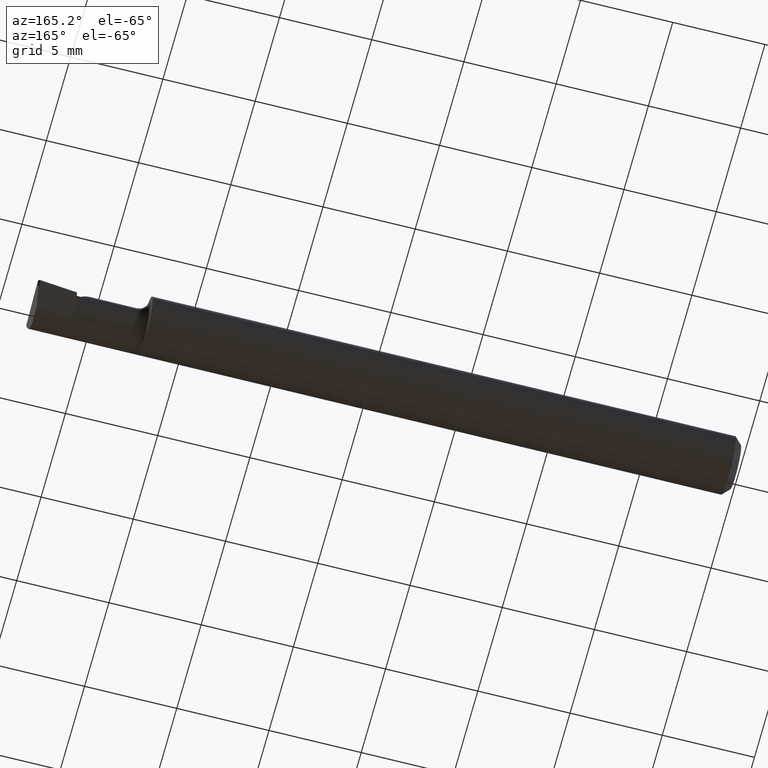
[diagram: clean part render]
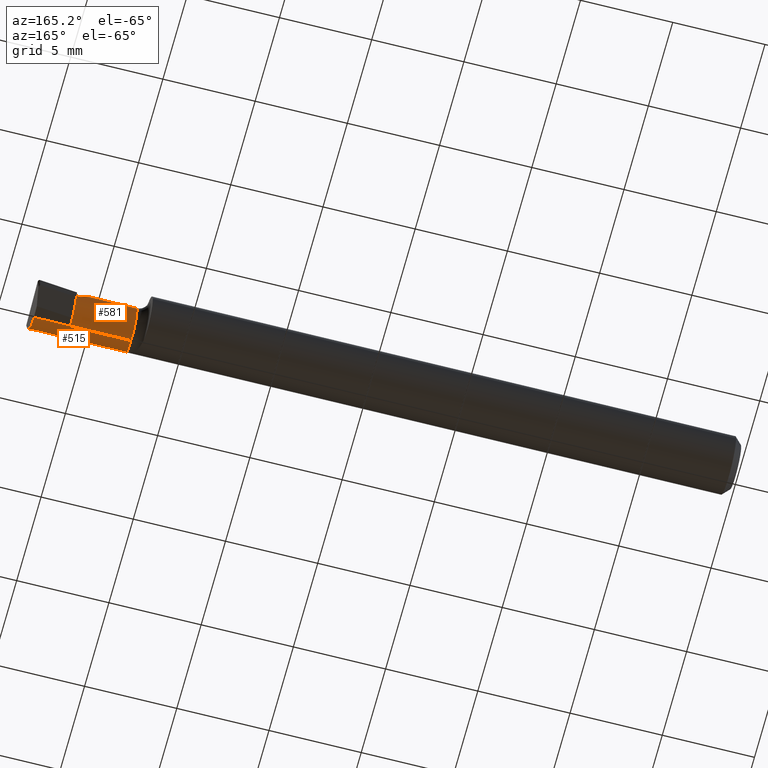
[diagram: same view with one multi-face feature highlighted, each face labeled with its STEP entity id]
A machine part, auxiliary view. The highlighted faces form ONE feature: a constant-radius fillet chain: 2 tangent blend faces with common blend radius 1.2205 mm. The faces share edges in the B-rep.
Their STEP definitions:
[1] entity #581 (Cylinder):
#10 = DIRECTION ( 'NONE',  ( -1.000000000000000000, -0.0000000000000000000, -0.0000000000000000000 ) ) ;
#23 = ORIENTED_EDGE ( 'NONE', *, *, #310, .T. ) ;
#40 = CARTESIAN_POINT ( 'NONE',  ( 1.285000000000000142, -0.01839999999999999969, 0.0000000000000000000 ) ) ;
#43 = EDGE_CURVE ( 'NONE', #458, #680, #747, .T. ) ;
#61 = CARTESIAN_POINT ( 'NONE',  ( 1.285000000000000142, -0.01839999999999999275, -0.04804999999999998161 ) ) ;
#87 = LINE ( 'NONE', #249, #661 ) ;
#105 = CARTESIAN_POINT ( 'NONE',  ( 2.249639673992775738E-32, 0.02964999999999998193, 1.836970198721025250E-16 ) ) ;
#108 = AXIS2_PLACEMENT_3D ( 'NONE', #377, #675, #667 ) ;
#111 = VERTEX_POINT ( 'NONE', #768 ) ;
#117 = CARTESIAN_POINT ( 'NONE',  ( 1.405000000000000249, 0.02964999999999991601, 1.163414459189982046E-17 ) ) ;
#129 = CARTESIAN_POINT ( 'NONE',  ( 0.0000000000000000000, -0.01839999999999999969, 0.0000000000000000000 ) ) ;
#141 = CARTESIAN_POINT ( 'NONE',  ( 0.0000000000000000000, -0.01839999999999999969, 0.04804999999999998855 ) ) ;
#155 = VERTEX_POINT ( 'NONE', #775 ) ;
#159 = VERTEX_POINT ( 'NONE', #267 ) ;
#165 = ORIENTED_EDGE ( 'NONE', *, *, #611, .T. ) ;
#168 = AXIS2_PLACEMENT_3D ( 'NONE', #253, #287, #349 ) ;
#178 = ORIENTED_EDGE ( 'NONE', *, *, #473, .T. ) ;
#180 = CARTESIAN_POINT ( 'NONE',  ( 1.376852961672026865, 0.02964999999999999233, 0.02814703832797277663 ) ) ;
#206 = DIRECTION ( 'NONE',  ( 0.0000000000000000000, 0.0000000000000000000, 1.000000000000000000 ) ) ;
#221 = CARTESIAN_POINT ( 'NONE',  ( 1.415000000000000036, -0.01839999999999999969, 0.0000000000000000000 ) ) ;
#222 = CARTESIAN_POINT ( 'NONE',  ( 1.356949999999999656, 0.009747038327972780414, 0.04804999999999998855 ) ) ;
#239 = LINE ( 'NONE', #105, #456 ) ;
#241 = VECTOR ( 'NONE', #319, 39.37007874015748143 ) ;
#245 = VERTEX_POINT ( 'NONE', #260 ) ;
#249 = CARTESIAN_POINT ( 'NONE',  ( 0.0000000000000000000, -0.01839999999999999275, -0.04804999999999998855 ) ) ;
#253 = CARTESIAN_POINT ( 'NONE',  ( 1.415000000000000036, -0.01839999999999999969, 0.0000000000000000000 ) ) ;
#260 = CARTESIAN_POINT ( 'NONE',  ( 1.405000000000000249, 0.02964999999999991601, 1.163414459189982046E-17 ) ) ;
#267 = CARTESIAN_POINT ( 'NONE',  ( 1.415000000000000036, 0.007456147106387282439, -0.04050015008383128778 ) ) ;
#269 = EDGE_CURVE ( 'NONE', #245, #527, #239, .T. ) ;
#287 = DIRECTION ( 'NONE',  ( -1.000000000000000000, -0.0000000000000000000, -0.0000000000000000000 ) ) ;
#298 = CARTESIAN_POINT ( 'NONE',  ( 1.356949999999999878, -0.01839999999999999969, 0.04804999999999998855 ) ) ;
#310 = EDGE_CURVE ( 'NONE', #111, #680, #87, .T. ) ;
#315 = DIRECTION ( 'NONE',  ( 1.000000000000000000, 0.0000000000000000000, 0.0000000000000000000 ) ) ;
#318 = ORIENTED_EDGE ( 'NONE', *, *, #360, .F. ) ;
#319 = DIRECTION ( 'NONE',  ( -1.000000000000000000, -0.0000000000000000000, -0.0000000000000000000 ) ) ;
#349 = DIRECTION ( 'NONE',  ( 0.0000000000000000000, 0.0000000000000000000, 1.000000000000000000 ) ) ;
#360 = EDGE_CURVE ( 'NONE', #449, #458, #735, .T. ) ;
#377 = CARTESIAN_POINT ( 'NONE',  ( 1.415000000000000036, -0.01839999999999999969, 0.0000000000000000000 ) ) ;
#405 = CARTESIAN_POINT ( 'NONE',  ( 1.285000000000000142, -0.01839999999999999969, 0.04804999999999998161 ) ) ;
#440 = ORIENTED_EDGE ( 'NONE', *, *, #652, .T. ) ;
#442 = EDGE_CURVE ( 'NONE', #159, #155, #605, .T. ) ;
#449 = VERTEX_POINT ( 'NONE', #660 ) ;
#452 = ORIENTED_EDGE ( 'NONE', *, *, #442, .F. ) ;
#456 = VECTOR ( 'NONE', #315, 39.37007874015748143 ) ;
#458 = VERTEX_POINT ( 'NONE', #405 ) ;
#473 = EDGE_CURVE ( 'NONE', #527, #155, #700, .T. ) ;
#479 = EDGE_LOOP ( 'NONE', ( #440, #23, #484, #318, #165, #529, #178, #452 ) ) ;
#484 = ORIENTED_EDGE ( 'NONE', *, *, #43, .F. ) ;
#494 = FACE_OUTER_BOUND ( 'NONE', #479, .T. ) ;
#496 = DIRECTION ( 'NONE',  ( -1.000000000000000000, -0.0000000000000000000, -0.0000000000000000000 ) ) ;
#527 = VERTEX_POINT ( 'NONE', #750 ) ;
#529 = ORIENTED_EDGE ( 'NONE', *, *, #269, .T. ) ;
#535 = AXIS2_PLACEMENT_3D ( 'NONE', #221, #10, #206 ) ;
#581 = ADVANCED_FACE ( 'NONE', ( #494 ), #586, .T. ) ;
#583 =( BOUNDED_CURVE ( )  B_SPLINE_CURVE ( 3, ( #298, #222, #180, #117 ),
 .UNSPECIFIED., .F., .T. ) 
 B_SPLINE_CURVE_WITH_KNOTS ( ( 4, 4 ),
 ( 0.0000000000000000000, 1.570796326794896558 ),
 .UNSPECIFIED. ) 
 CURVE ( )  GEOMETRIC_REPRESENTATION_ITEM ( )  RATIONAL_B_SPLINE_CURVE ( ( 1.000000000000000000, 0.8047378541243649375, 0.8047378541243649375, 1.000000000000000000 ) ) 
 REPRESENTATION_ITEM ( '' )  );
#586 = CYLINDRICAL_SURFACE ( 'NONE', #724, 0.04804999999999998855 ) ;
#600 = CIRCLE ( 'NONE', #535, 0.04805000000000000243 ) ;
#605 = CIRCLE ( 'NONE', #108, 0.04804999999999998855 ) ;
#611 = EDGE_CURVE ( 'NONE', #449, #245, #583, .T. ) ;
#618 = DIRECTION ( 'NONE',  ( -1.000000000000000000, -0.0000000000000000000, -0.0000000000000000000 ) ) ;
#636 = DIRECTION ( 'NONE',  ( 0.0000000000000000000, 0.0000000000000000000, 1.000000000000000000 ) ) ;
#646 = DIRECTION ( 'NONE',  ( -1.000000000000000000, -0.0000000000000000000, -0.0000000000000000000 ) ) ;
#652 = EDGE_CURVE ( 'NONE', #159, #111, #600, .T. ) ;
#660 = CARTESIAN_POINT ( 'NONE',  ( 1.356949999999999878, -0.01839999999999999969, 0.04804999999999998855 ) ) ;
#661 = VECTOR ( 'NONE', #618, 39.37007874015748143 ) ;
#667 = DIRECTION ( 'NONE',  ( 0.0000000000000000000, 3.553392291446753075E-15, 1.000000000000000000 ) ) ;
#675 = DIRECTION ( 'NONE',  ( 1.000000000000000000, 0.0000000000000000000, 0.0000000000000000000 ) ) ;
#676 = AXIS2_PLACEMENT_3D ( 'NONE', #40, #646, #636 ) ;
#680 = VERTEX_POINT ( 'NONE', #61 ) ;
#700 = CIRCLE ( 'NONE', #168, 0.04805000000000000243 ) ;
#724 = AXIS2_PLACEMENT_3D ( 'NONE', #129, #496, #727 ) ;
#727 = DIRECTION ( 'NONE',  ( 0.0000000000000000000, 0.0000000000000000000, 1.000000000000000000 ) ) ;
#735 = LINE ( 'NONE', #141, #241 ) ;
#747 = CIRCLE ( 'NONE', #676, 0.04804999999999998161 ) ;
#750 = CARTESIAN_POINT ( 'NONE',  ( 1.415000000000000036, 0.02964999999999999927, 1.836970198721026236E-16 ) ) ;
#768 = CARTESIAN_POINT ( 'NONE',  ( 1.415000000000000036, -0.01839999999999999969, -0.04804999999999998855 ) ) ;
#775 = CARTESIAN_POINT ( 'NONE',  ( 1.415000000000000036, 0.02286474879319036133, -0.02461753454420026813 ) ) ;
[2] entity #515 (Cylinder):
#14 = CYLINDRICAL_SURFACE ( 'NONE', #457, 0.04804999999999998855 ) ;
#37 = CIRCLE ( 'NONE', #585, 0.04804999999999998161 ) ;
#56 = EDGE_CURVE ( 'NONE', #512, #219, #381, .T. ) ;
#61 = CARTESIAN_POINT ( 'NONE',  ( 1.285000000000000142, -0.01839999999999999275, -0.04804999999999998161 ) ) ;
#64 = LINE ( 'NONE', #136, #163 ) ;
#82 = CARTESIAN_POINT ( 'NONE',  ( 1.492086480543132199, -0.03117368152160949688, -0.04804999999999997468 ) ) ;
#87 = LINE ( 'NONE', #249, #661 ) ;
#103 = FACE_OUTER_BOUND ( 'NONE', #577, .T. ) ;
#111 = VERTEX_POINT ( 'NONE', #768 ) ;
#133 = ORIENTED_EDGE ( 'NONE', *, *, #182, .F. ) ;
#136 = CARTESIAN_POINT ( 'NONE',  ( 1.500000000000000222, -0.01839999999999999969, -0.04804999999999998855 ) ) ;
#149 = EDGE_CURVE ( 'NONE', #512, #621, #489, .T. ) ;
#163 = VECTOR ( 'NONE', #448, 39.37007874015748143 ) ;
#174 = CARTESIAN_POINT ( 'NONE',  ( 1.492420971165607124, -0.01839999999999999969, -0.04804999999999998855 ) ) ;
#182 = EDGE_CURVE ( 'NONE', #621, #111, #64, .T. ) ;
#219 = VERTEX_POINT ( 'NONE', #630 ) ;
#230 = VECTOR ( 'NONE', #625, 39.37007874015748143 ) ;
#244 = DIRECTION ( 'NONE',  ( -1.000000000000000000, -0.0000000000000000000, -0.0000000000000000000 ) ) ;
#248 = ORIENTED_EDGE ( 'NONE', *, *, #56, .T. ) ;
#249 = CARTESIAN_POINT ( 'NONE',  ( 0.0000000000000000000, -0.01839999999999999275, -0.04804999999999998855 ) ) ;
#310 = EDGE_CURVE ( 'NONE', #111, #680, #87, .T. ) ;
#314 = CARTESIAN_POINT ( 'NONE',  ( 0.0000000000000000000, -0.01839999999999999969, 0.0000000000000000000 ) ) ;
#316 = CARTESIAN_POINT ( 'NONE',  ( 1.493233423732483356, -0.05210000000000002823, -0.03425072991922942234 ) ) ;
#320 = CARTESIAN_POINT ( 'NONE',  ( 1.492420971165607124, -0.01839999999999999969, -0.04804999999999998855 ) ) ;
#345 = DIRECTION ( 'NONE',  ( 0.0000000000000000000, 0.0000000000000000000, 1.000000000000000000 ) ) ;
#352 = ORIENTED_EDGE ( 'NONE', *, *, #310, .F. ) ;
#368 = ORIENTED_EDGE ( 'NONE', *, *, #672, .F. ) ;
#378 = CARTESIAN_POINT ( 'NONE',  ( 1.493233423732483356, -0.05210000000000002823, -0.03425072991922942234 ) ) ;
#381 = LINE ( 'NONE', #773, #230 ) ;
#403 = DIRECTION ( 'NONE',  ( -1.000000000000000000, -0.0000000000000000000, -0.0000000000000000000 ) ) ;
#448 = DIRECTION ( 'NONE',  ( -1.000000000000000000, 5.691349986800549142E-18, -0.0000000000000000000 ) ) ;
#451 = CARTESIAN_POINT ( 'NONE',  ( 1.492371467082627357, -0.04299473640227067378, -0.04320958667840189144 ) ) ;
#457 = AXIS2_PLACEMENT_3D ( 'NONE', #314, #244, #345 ) ;
#468 = CARTESIAN_POINT ( 'NONE',  ( 1.285000000000000142, -0.01839999999999999969, 0.0000000000000000000 ) ) ;
#489 =( BOUNDED_CURVE ( )  B_SPLINE_CURVE ( 3, ( #378, #451, #82, #320 ),
 .UNSPECIFIED., .F., .T. ) 
 B_SPLINE_CURVE_WITH_KNOTS ( ( 4, 4 ),
 ( 5.715941252449248111, 6.493234751459834975 ),
 .UNSPECIFIED. ) 
 CURVE ( )  GEOMETRIC_REPRESENTATION_ITEM ( )  RATIONAL_B_SPLINE_CURVE ( ( 1.000000000000000000, 0.9502818019828908058, 0.9502818019828908058, 1.000000000000000000 ) ) 
 REPRESENTATION_ITEM ( '' )  );
#512 = VERTEX_POINT ( 'NONE', #316 ) ;
#515 = ADVANCED_FACE ( 'NONE', ( #103 ), #14, .T. ) ;
#551 = ORIENTED_EDGE ( 'NONE', *, *, #149, .F. ) ;
#577 = EDGE_LOOP ( 'NONE', ( #352, #133, #551, #248, #368 ) ) ;
#585 = AXIS2_PLACEMENT_3D ( 'NONE', #468, #403, #645 ) ;
#618 = DIRECTION ( 'NONE',  ( -1.000000000000000000, -0.0000000000000000000, -0.0000000000000000000 ) ) ;
#621 = VERTEX_POINT ( 'NONE', #174 ) ;
#625 = DIRECTION ( 'NONE',  ( -1.000000000000000000, -0.0000000000000000000, -0.0000000000000000000 ) ) ;
#630 = CARTESIAN_POINT ( 'NONE',  ( 1.285000000000000142, -0.05209999999999941067, -0.03425072991923002602 ) ) ;
#645 = DIRECTION ( 'NONE',  ( 0.0000000000000000000, 0.0000000000000000000, 1.000000000000000000 ) ) ;
#661 = VECTOR ( 'NONE', #618, 39.37007874015748143 ) ;
#672 = EDGE_CURVE ( 'NONE', #680, #219, #37, .T. ) ;
#680 = VERTEX_POINT ( 'NONE', #61 ) ;
#768 = CARTESIAN_POINT ( 'NONE',  ( 1.415000000000000036, -0.01839999999999999969, -0.04804999999999998855 ) ) ;
#773 = CARTESIAN_POINT ( 'NONE',  ( 1.350000000000000089, -0.05210000000000002823, -0.03425072991922942234 ) ) ;